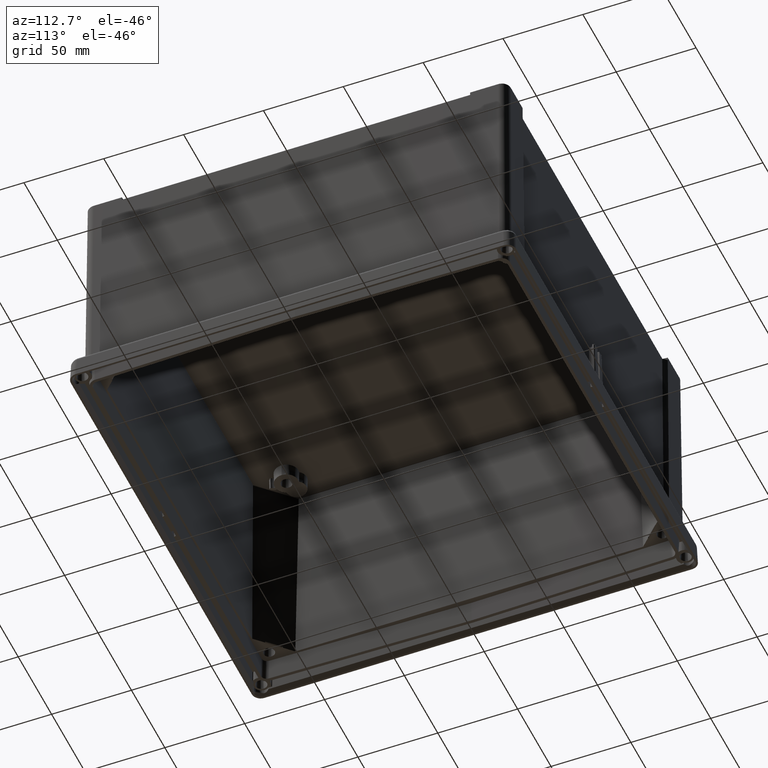
[diagram: clean part render]
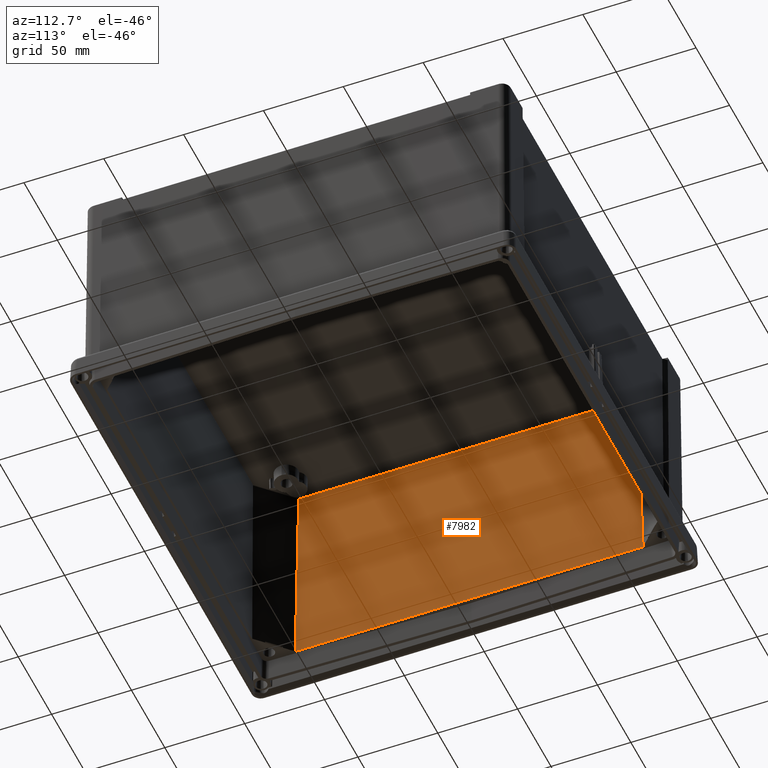
[diagram: same view with one face highlighted and labeled with its STEP entity id]
A machine part, auxiliary view. The second image highlights one B-rep face of the part: STEP entity #7982.
In plain terms, the highlighted planar face has unit normal (-0.9999, 0, 0.014).
Its self-contained STEP definition (entity closure, byte-faithful):
#7756 = VERTEX_POINT ( 'NONE', #13128 ) ;
#7813 = EDGE_CURVE ( 'NONE', #7756, #7814, #13231, .T. ) ;
#7814 = VERTEX_POINT ( 'NONE', #13271 ) ;
#7958 = ORIENTED_EDGE ( 'NONE', *, *, #7813, .F. ) ;
#7959 = ORIENTED_EDGE ( 'NONE', *, *, #7960, .T. ) ;
#7960 = EDGE_CURVE ( 'NONE', #7756, #7961, #13480, .T. ) ;
#7961 = VERTEX_POINT ( 'NONE', #13476 ) ;
#7962 = ORIENTED_EDGE ( 'NONE', *, *, #7963, .F. ) ;
#7963 = EDGE_CURVE ( 'NONE', #7973, #7961, #13530, .T. ) ;
#7964 = ORIENTED_EDGE ( 'NONE', *, *, #7972, .F. ) ;
#7972 = EDGE_CURVE ( 'NONE', #7814, #7973, #13513, .T. ) ;
#7973 = VERTEX_POINT ( 'NONE', #13509 ) ;
#7982 = ADVANCED_FACE ( 'NONE', ( #13547 ), #13546, .F. ) ;
#7983 = EDGE_LOOP ( 'NONE', ( #7958, #7959, #7962, #7964 ) ) ;
#13128 = CARTESIAN_POINT ( 'NONE',  ( -125.7684876510148900, -106.0233127206743100, 139.6569810901696100 ) ) ;
#13228 = DIRECTION ( 'NONE',  ( 0.0000000000000000000, 1.000000000000000000, -0.0000000000000000000 ) ) ;
#13229 = VECTOR ( 'NONE', #13228, 1000.000000000000000 ) ;
#13230 = CARTESIAN_POINT ( 'NONE',  ( -125.7684876510148900, -134.0224936177745600, 139.6569810901696100 ) ) ;
#13231 = LINE ( 'NONE', #13230, #13229 ) ;
#13271 = CARTESIAN_POINT ( 'NONE',  ( -125.7684876510148900, 106.0233127206743100, 139.6569810901696100 ) ) ;
#13476 = CARTESIAN_POINT ( 'NONE',  ( -127.4981093756524500, -108.8807931680684200, 15.78999999999999900 ) ) ;
#13477 = DIRECTION ( 'NONE',  ( -0.01395846737512630200, -0.02306056118043304000, -0.9996366198307167200 ) ) ;
#13478 = VECTOR ( 'NONE', #13477, 1000.000000000000100 ) ;
#13479 = CARTESIAN_POINT ( 'NONE',  ( -125.7684023703054500, -106.0231718297753200, 139.6630884741539700 ) ) ;
#13480 = LINE ( 'NONE', #13479, #13478 ) ;
#13509 = CARTESIAN_POINT ( 'NONE',  ( -127.4981093756524500, 108.8807931680683800, 15.78999999999999200 ) ) ;
#13510 = DIRECTION ( 'NONE',  ( -0.01395846737512608500, 0.02306056118043298800, -0.9996366198307167200 ) ) ;
#13511 = VECTOR ( 'NONE', #13510, 1000.000000000000100 ) ;
#13512 = CARTESIAN_POINT ( 'NONE',  ( -125.7684876510148900, 106.0233127206743100, 139.6569810901695800 ) ) ;
#13513 = LINE ( 'NONE', #13512, #13511 ) ;
#13527 = DIRECTION ( 'NONE',  ( -0.0000000000000000000, -1.000000000000000000, 0.0000000000000000000 ) ) ;
#13528 = VECTOR ( 'NONE', #13527, 1000.000000000000000 ) ;
#13529 = CARTESIAN_POINT ( 'NONE',  ( -127.4981093756524500, 0.0000000000000000000, 15.78999999999999900 ) ) ;
#13530 = LINE ( 'NONE', #13529, #13528 ) ;
#13542 = DIRECTION ( 'NONE',  ( 0.01396218033914527000, 0.0000000000000000000, 0.9999025240093042400 ) ) ;
#13543 = DIRECTION ( 'NONE',  ( -0.9999025240093042400, 0.0000000000000000000, 0.01396218033914527000 ) ) ;
#13544 = CARTESIAN_POINT ( 'NONE',  ( -127.5400000000000200, -134.0224936177745600, 12.78999999999999900 ) ) ;
#13545 = AXIS2_PLACEMENT_3D ( 'NONE', #13544, #13543, #13542 ) ;
#13546 = PLANE ( 'NONE',  #13545 ) ;
#13547 = FACE_OUTER_BOUND ( 'NONE', #7983, .T. ) ;